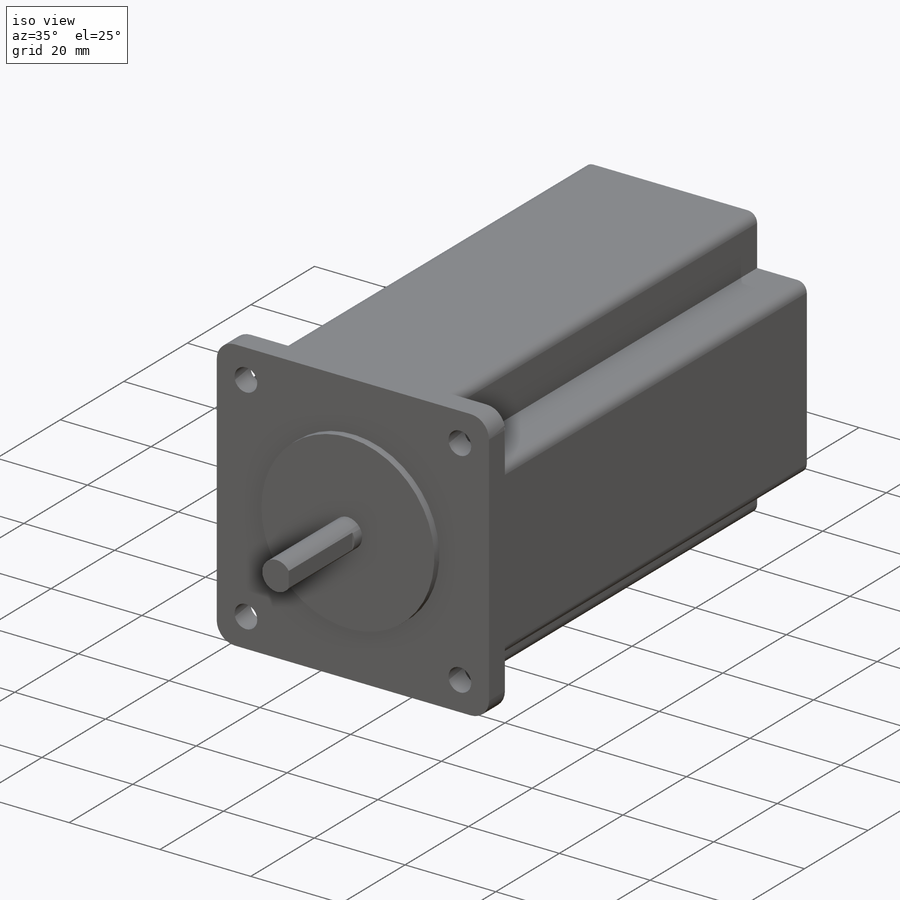
[diagram: iso view]
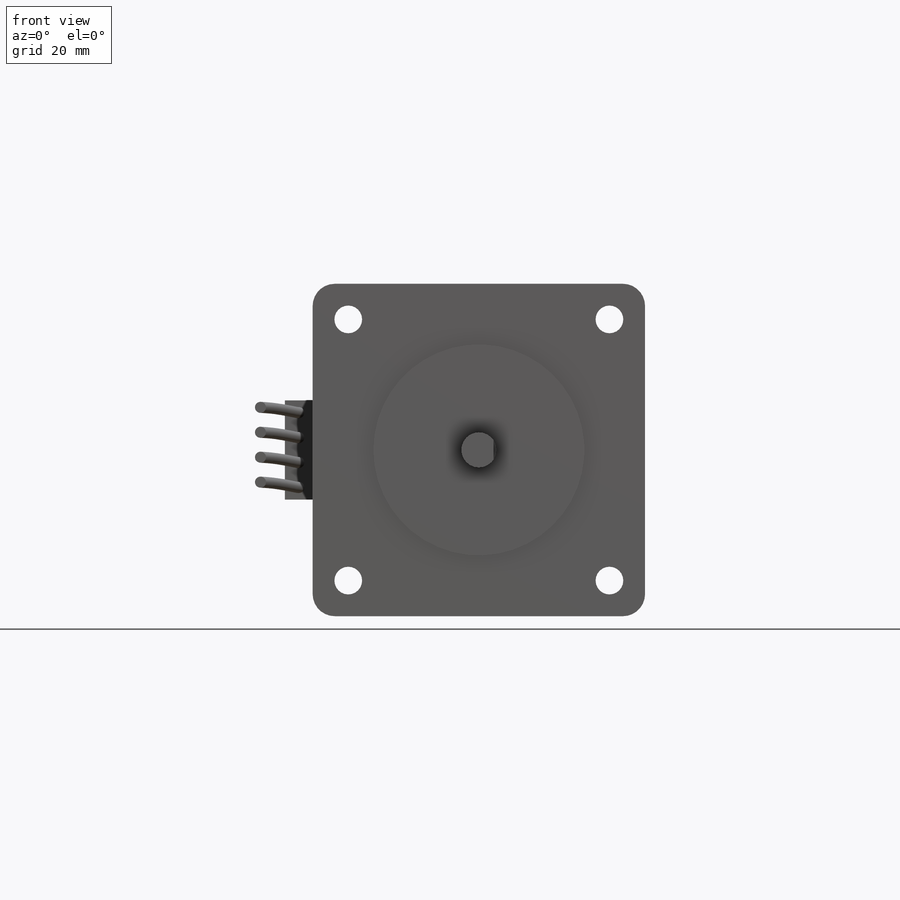
[diagram: front view]
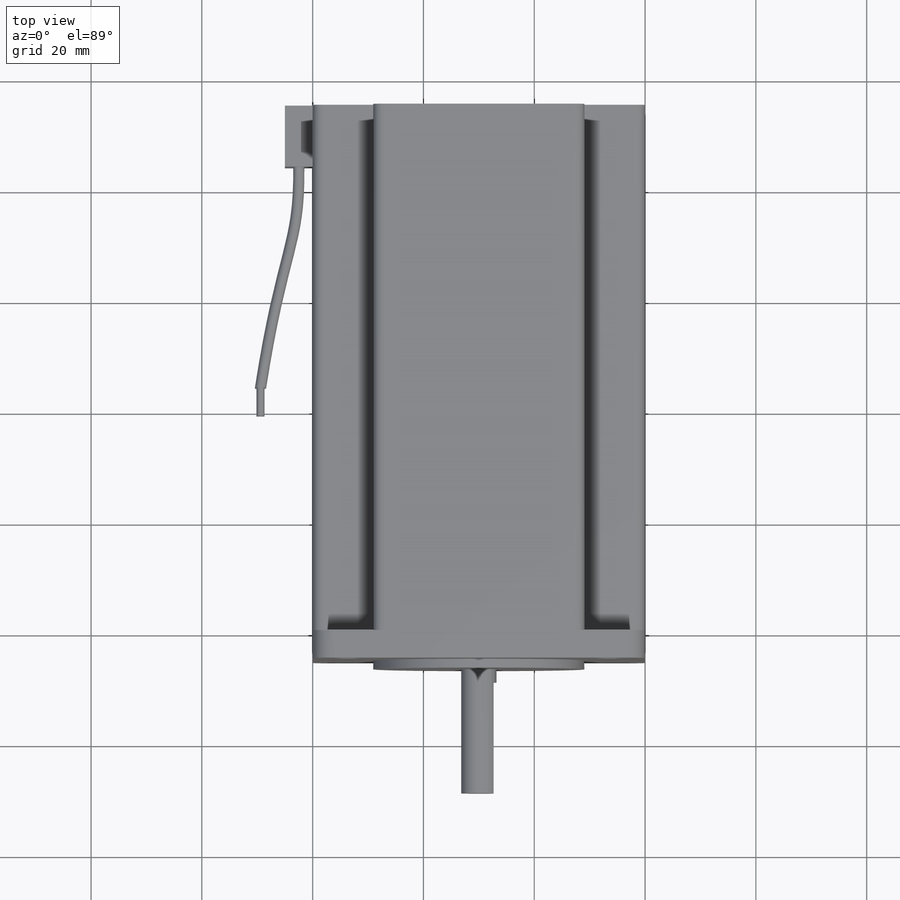
[diagram: top view]
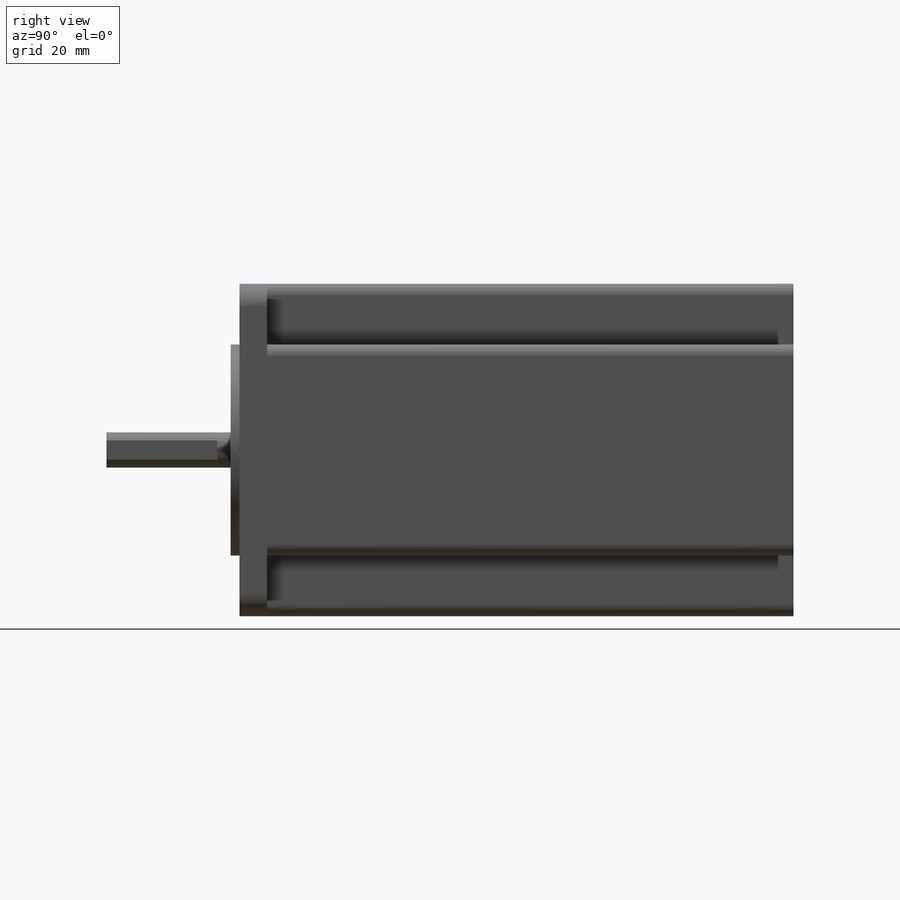
[diagram: right view]
SOLIDWORKS PART (.sldprt)
format: sldprt  version: not decoded by parser v0  size: 752,128 bytes
history: native  units: mm
features: sketch x10, extrude x6, material x1, cut_extrude x1, fillet x1, sweep x1 (+11 scaffold rows collapsed)
feature tree (31):
  scaffold x11  (default folders/planes/origin — collapsed)
  material  "Material <not specified>"
  sketch  "Sketch1"  dims[D3=4.0mm D8=~2.381527mm D1=60.0mm D2=60.0mm D4=47.14mm D5=23.57mm D6=47.14mm D7=23.57mm]
  extrude  "Boss-Extrude1"  Depth=5mm
  sketch  "Sketch2"  dims[D1=~9.008547mm]
  extrude  "Boss-Extrude2"  Depth=1.6mm
  sketch  "Sketch3"  dims[D1=~2.709213mm]
  extrude  "Boss-Extrude3"  Depth=24mm
  sketch  "Sketch4"  dims[D1=5.85mm]
  cut_extrude  "Cut-Extrude1"  Depth=20mm
  sketch  "Sketch5"  dims[c1.D2=14.0mm c1.D1=0.0mm c2.D2=0.0mm]
  extrude  "Boss-Extrude4"  Depth=95mm
  fillet  "Fillet1"  Radius=2mm
  sketch  "Sketch6"  dims[D1=10.0mm D2=10.0mm]
  sketch  "Sketch7"  dims[D1=11.0mm]
  extrude  "Boss-Extrude5"  Depth=5mm
  sketch  "Sketch8"  dims[c1.D1=~1.013108mm c2.D1=4.0]
  sketch  "3DSketch1"
  sweep  "Sweep1"
  sketch  "Sketch9"
  extrude  "Boss-Extrude6"  Depth=5mm
decode coverage: 16 of 19 modeling features carry decoded parameters
note: ~ marks probable driven/reference dimensions
note: suppression state not decoded; provenance and decode notes live in map.json
